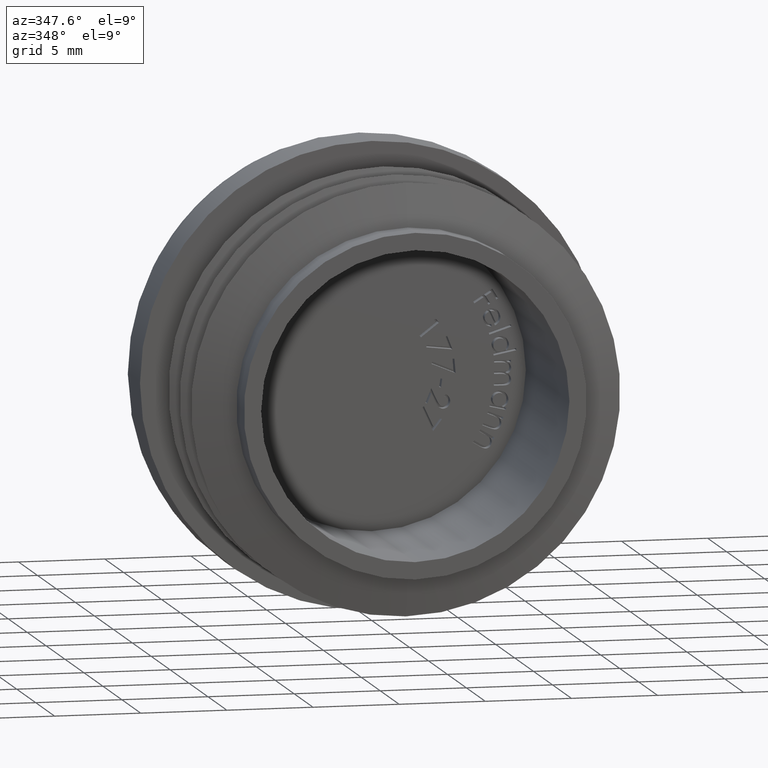
[diagram: clean part render]
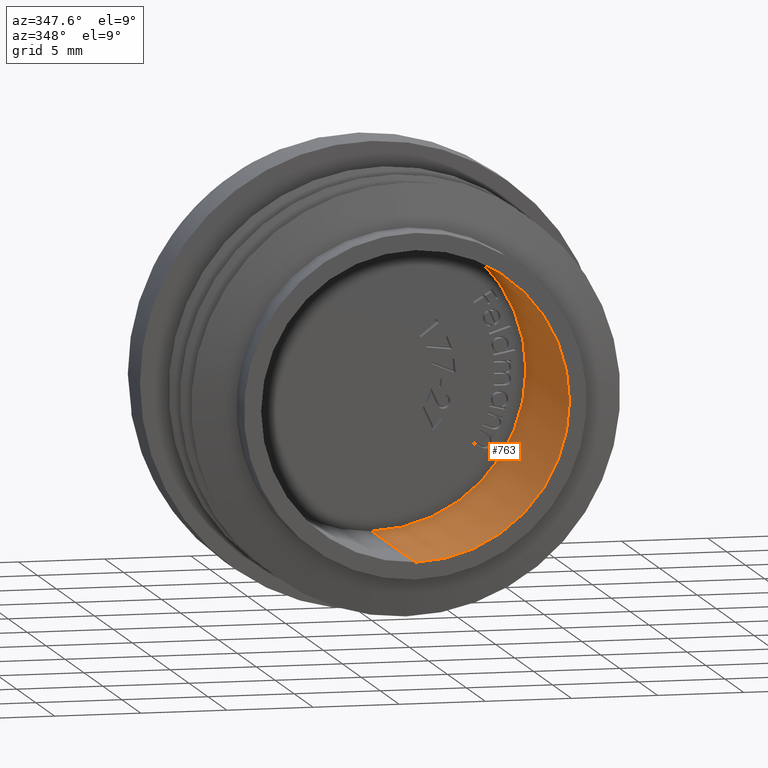
[diagram: same view with one face highlighted and labeled with its STEP entity id]
A machine part, auxiliary view. The second image highlights one B-rep face of the part: STEP entity #763.
In plain terms, the highlighted cylindrical surface (partial cylindrical patch) has radius 8.95 mm, axis along (-0, 1, -0).
Its self-contained STEP definition (entity closure, byte-faithful):
#19 = LINE ( 'NONE', #5810, #3637 ) ;
#59 = CARTESIAN_POINT ( 'NONE',  ( 0.0000000000000000000, -11.50000000000000000, 8.949999999999999300 ) ) ;
#226 = VERTEX_POINT ( 'NONE', #4597 ) ;
#342 = VERTEX_POINT ( 'NONE', #4347 ) ;
#540 = CIRCLE ( 'NONE', #4386, 8.949999999999999300 ) ;
#626 = CARTESIAN_POINT ( 'NONE',  ( 0.0000000000000000000, 0.0000000000000000000, 0.0000000000000000000 ) ) ;
#763 = ADVANCED_FACE ( 'NONE', ( #5582 ), #1980, .F. ) ;
#1313 = DIRECTION ( 'NONE',  ( 0.0000000000000000000, 0.0000000000000000000, 1.000000000000000000 ) ) ;
#1419 = DIRECTION ( 'NONE',  ( 0.0000000000000000000, -1.000000000000000000, 0.0000000000000000000 ) ) ;
#1523 = EDGE_LOOP ( 'NONE', ( #1834, #2696, #2918, #6035 ) ) ;
#1834 = ORIENTED_EDGE ( 'NONE', *, *, #3594, .F. ) ;
#1980 = CYLINDRICAL_SURFACE ( 'NONE', #2202, 8.949999999999999300 ) ;
#2202 = AXIS2_PLACEMENT_3D ( 'NONE', #2801, #3061, #2836 ) ;
#2696 = ORIENTED_EDGE ( 'NONE', *, *, #7775, .T. ) ;
#2801 = CARTESIAN_POINT ( 'NONE',  ( 0.0000000000000000000, -11.50000000000000000, 0.0000000000000000000 ) ) ;
#2836 = DIRECTION ( 'NONE',  ( 0.0000000000000000000, 0.0000000000000000000, 1.000000000000000000 ) ) ;
#2901 = LINE ( 'NONE', #7433, #6351 ) ;
#2918 = ORIENTED_EDGE ( 'NONE', *, *, #3738, .T. ) ;
#3061 = DIRECTION ( 'NONE',  ( -0.0000000000000000000, 1.000000000000000000, -0.0000000000000000000 ) ) ;
#3364 = EDGE_CURVE ( 'NONE', #342, #3911, #540, .T. ) ;
#3594 = EDGE_CURVE ( 'NONE', #226, #342, #2901, .T. ) ;
#3637 = VECTOR ( 'NONE', #4454, 1000.000000000000000 ) ;
#3694 = DIRECTION ( 'NONE',  ( -0.0000000000000000000, 1.000000000000000000, -0.0000000000000000000 ) ) ;
#3738 = EDGE_CURVE ( 'NONE', #6804, #3911, #19, .T. ) ;
#3911 = VERTEX_POINT ( 'NONE', #3958 ) ;
#3958 = CARTESIAN_POINT ( 'NONE',  ( 0.0000000000000000000, 0.0000000000000000000, 8.949999999999999300 ) ) ;
#4347 = CARTESIAN_POINT ( 'NONE',  ( 1.096058885236881000E-015, 0.0000000000000000000, -8.949999999999999300 ) ) ;
#4386 = AXIS2_PLACEMENT_3D ( 'NONE', #626, #5377, #1313 ) ;
#4454 = DIRECTION ( 'NONE',  ( -0.0000000000000000000, 1.000000000000000000, -0.0000000000000000000 ) ) ;
#4597 = CARTESIAN_POINT ( 'NONE',  ( 1.096058885236881000E-015, -11.50000000000000000, -8.949999999999999300 ) ) ;
#5377 = DIRECTION ( 'NONE',  ( -0.0000000000000000000, -1.000000000000000000, -0.0000000000000000000 ) ) ;
#5484 = CARTESIAN_POINT ( 'NONE',  ( 0.0000000000000000000, -11.50000000000000000, 0.0000000000000000000 ) ) ;
#5582 = FACE_OUTER_BOUND ( 'NONE', #1523, .T. ) ;
#5810 = CARTESIAN_POINT ( 'NONE',  ( 0.0000000000000000000, -11.50000000000000000, 8.949999999999999300 ) ) ;
#6035 = ORIENTED_EDGE ( 'NONE', *, *, #3364, .F. ) ;
#6090 = DIRECTION ( 'NONE',  ( 0.0000000000000000000, 0.0000000000000000000, -1.000000000000000000 ) ) ;
#6351 = VECTOR ( 'NONE', #3694, 1000.000000000000000 ) ;
#6804 = VERTEX_POINT ( 'NONE', #59 ) ;
#7433 = CARTESIAN_POINT ( 'NONE',  ( 1.096058885236881000E-015, -11.50000000000000000, -8.949999999999999300 ) ) ;
#7700 = CIRCLE ( 'NONE', #7952, 8.949999999999999300 ) ;
#7775 = EDGE_CURVE ( 'NONE', #226, #6804, #7700, .T. ) ;
#7952 = AXIS2_PLACEMENT_3D ( 'NONE', #5484, #1419, #6090 ) ;